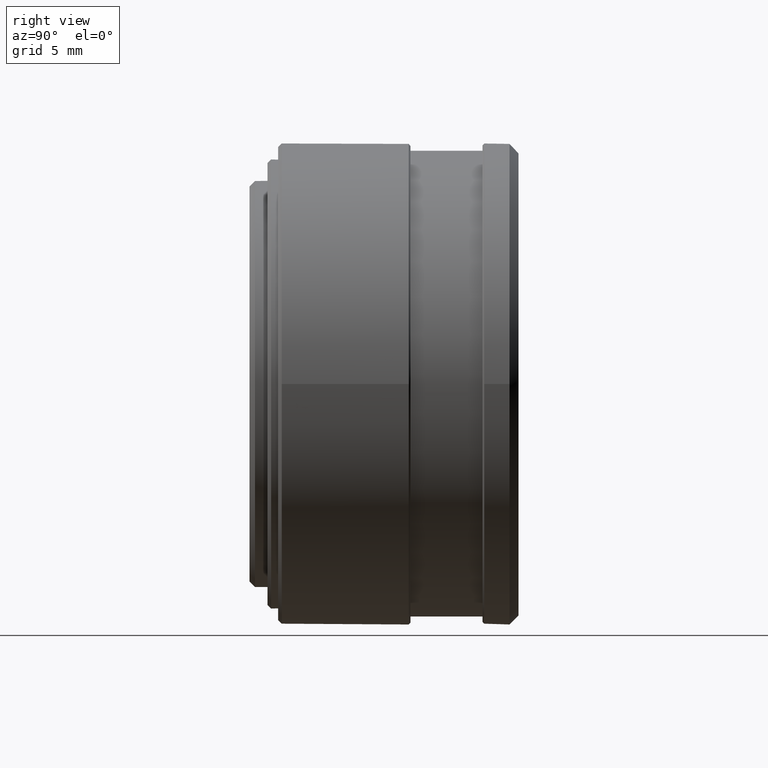
[diagram: clean part render]
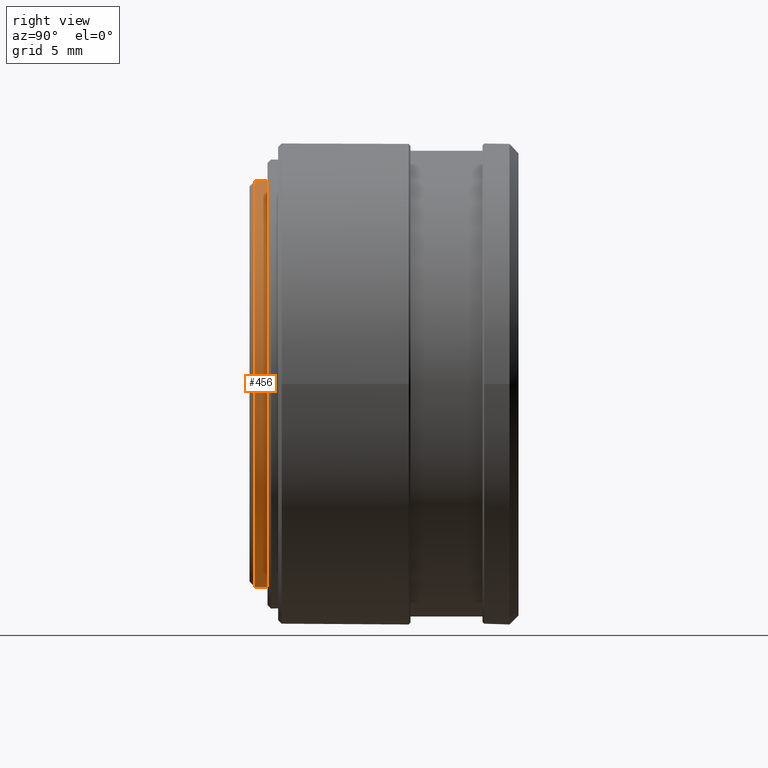
[diagram: same view with one face highlighted and labeled with its STEP entity id]
A machine part, right view. The second image highlights one B-rep face of the part: STEP entity #456.
In plain terms, the highlighted cylindrical surface (bore or boss wall) has radius 11.3 mm, axis along (0, -1, 0).
Its self-contained STEP definition (entity closure, byte-faithful):
#14 = CIRCLE ( 'NONE', #627, 11.30000000000000249 ) ;
#16 = DIRECTION ( 'NONE',  ( 0.1252945241615309180, 0.000000000000000000, -0.9921195906820585719 ) ) ;
#100 = CYLINDRICAL_SURFACE ( 'NONE', #292, 11.30000000000000249 ) ;
#202 = CARTESIAN_POINT ( 'NONE',  ( 1.415828123025299812, -0.5880522725749716129, -11.21095137470726399 ) ) ;
#292 = AXIS2_PLACEMENT_3D ( 'NONE', #655, #1719, #900 ) ;
#448 = CARTESIAN_POINT ( 'NONE',  ( 0.000000000000000000, -1.288050361574968550, 0.000000000000000000 ) ) ;
#456 = ADVANCED_FACE ( 'NONE', ( #504, #1481 ), #100, .T. ) ;
#504 = FACE_OUTER_BOUND ( 'NONE', #1306, .T. ) ;
#627 = AXIS2_PLACEMENT_3D ( 'NONE', #924, #1078, #16 ) ;
#647 = VERTEX_POINT ( 'NONE', #778 ) ;
#655 = CARTESIAN_POINT ( 'NONE',  ( 0.000000000000000000, -0.5880522725749716129, 0.000000000000000000 ) ) ;
#778 = CARTESIAN_POINT ( 'NONE',  ( 1.415828123025299812, -1.288050361574968550, -11.21095137470726399 ) ) ;
#803 = AXIS2_PLACEMENT_3D ( 'NONE', #448, #1400, #1269 ) ;
#848 = ORIENTED_EDGE ( 'NONE', *, *, #1443, .F. ) ;
#900 = DIRECTION ( 'NONE',  ( 0.1252945241615309180, 0.000000000000000000, -0.9921195906820585719 ) ) ;
#924 = CARTESIAN_POINT ( 'NONE',  ( 0.000000000000000000, -0.5880522725749716129, 0.000000000000000000 ) ) ;
#938 = EDGE_CURVE ( 'NONE', #1439, #1439, #14, .T. ) ;
#1078 = DIRECTION ( 'NONE',  ( 0.000000000000000000, -1.000000000000000000, 0.000000000000000000 ) ) ;
#1269 = DIRECTION ( 'NONE',  ( 0.1252945241615309180, 0.000000000000000000, -0.9921195906820585719 ) ) ;
#1306 = EDGE_LOOP ( 'NONE', ( #848 ) ) ;
#1400 = DIRECTION ( 'NONE',  ( 0.000000000000000000, -1.000000000000000000, 0.000000000000000000 ) ) ;
#1439 = VERTEX_POINT ( 'NONE', #202 ) ;
#1443 = EDGE_CURVE ( 'NONE', #647, #647, #1566, .T. ) ;
#1481 = FACE_OUTER_BOUND ( 'NONE', #1523, .T. ) ;
#1523 = EDGE_LOOP ( 'NONE', ( #1697 ) ) ;
#1566 = CIRCLE ( 'NONE', #803, 11.30000000000000249 ) ;
#1697 = ORIENTED_EDGE ( 'NONE', *, *, #938, .T. ) ;
#1719 = DIRECTION ( 'NONE',  ( 0.000000000000000000, -1.000000000000000000, 0.000000000000000000 ) ) ;